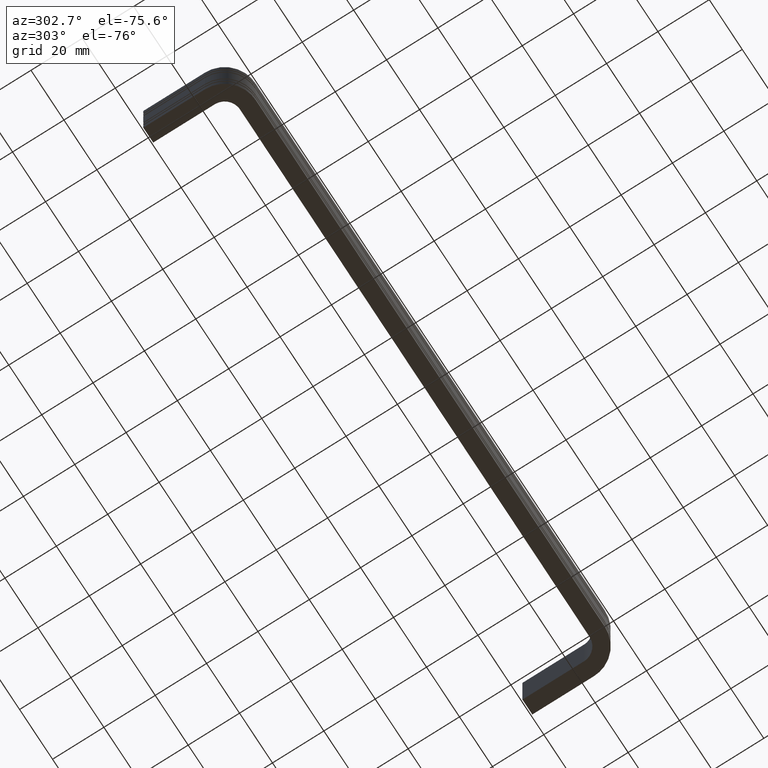
[diagram: clean part render]
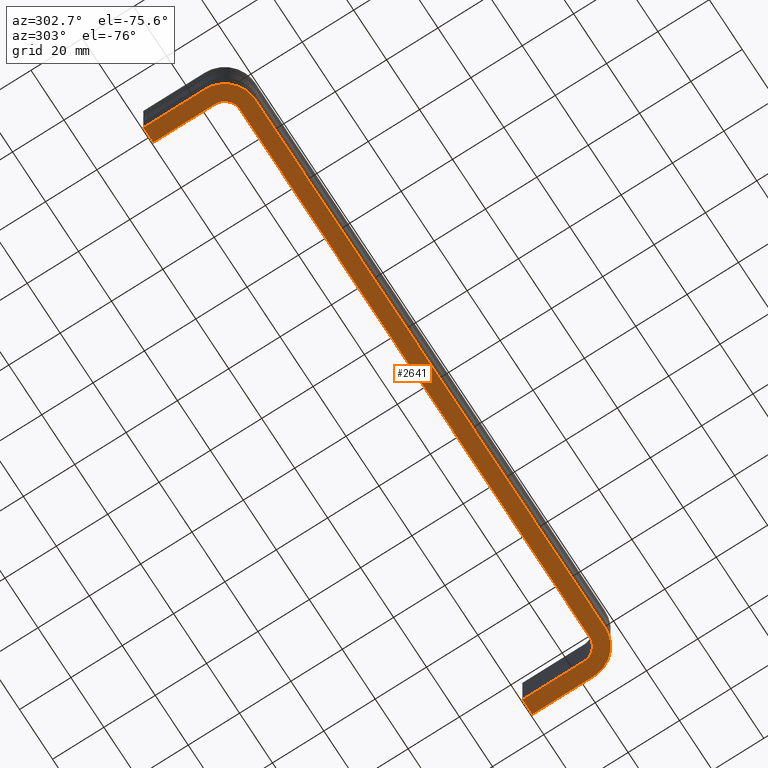
[diagram: same view with one face highlighted and labeled with its STEP entity id]
A machine part, auxiliary view. The second image highlights one B-rep face of the part: STEP entity #2641.
In plain terms, the highlighted face is a freeform B-spline surface patch.
Its self-contained STEP definition (entity closure, byte-faithful):
#734=CARTESIAN_POINT('',(232.999900000000000,-24.0,-11.0));
#735=VERTEX_POINT('',#734);
#741=CARTESIAN_POINT('',(232.999900000000000,0.0,-11.0));
#742=VERTEX_POINT('',#741);
#743=CARTESIAN_POINT('',(232.999900000000000,-24.0,-11.0));
#744=CARTESIAN_POINT('',(232.999900000000000,0.0,-11.0));
#745=QUASI_UNIFORM_CURVE('',1,(#743,#744),.UNSPECIFIED.,.F.,.U.);
#746=EDGE_CURVE('',#735,#742,#745,.T.);
#761=CARTESIAN_POINT('',(226.999900000000000,-24.0,-11.0));
#762=VERTEX_POINT('',#761);
#763=CARTESIAN_POINT('',(226.999900000000000,0.0,-11.0));
#764=VERTEX_POINT('',#763);
#765=CARTESIAN_POINT('',(226.999900000000000,-24.0,-11.0));
#766=CARTESIAN_POINT('',(226.999900000000000,0.0,-11.0));
#767=QUASI_UNIFORM_CURVE('',1,(#765,#766),.UNSPECIFIED.,.F.,.U.);
#768=EDGE_CURVE('',#762,#764,#767,.T.);
#1245=CARTESIAN_POINT('',(220.999900000000000,-36.0,-11.0));
#1246=VERTEX_POINT('',#1245);
#1252=CARTESIAN_POINT('',(220.999900000000000,-36.000000000000007,-11.0));
#1253=CARTESIAN_POINT('',(232.999900000000050,-36.000000000000014,-11.0));
#1254=CARTESIAN_POINT('',(232.999900000000000,-24.0,-11.0));
#1262=(BOUNDED_CURVE()B_SPLINE_CURVE(2,(#1252,#1253,#1254),.UNSPECIFIED.,.F.,.U.)CURVE()GEOMETRIC_REPRESENTATION_ITEM()QUASI_UNIFORM_CURVE()RATIONAL_B_SPLINE_CURVE((1.0,0.707106781186548,1.0))REPRESENTATION_ITEM(''));
#1263=EDGE_CURVE('',#1246,#735,#1262,.T.);
#1283=CARTESIAN_POINT('',(220.999900000000000,-30.0,-11.0));
#1284=VERTEX_POINT('',#1283);
#1285=CARTESIAN_POINT('',(220.999900000000000,-30.0,-11.0));
#1286=CARTESIAN_POINT('',(226.999900000000030,-30.000000000000004,-11.0));
#1287=CARTESIAN_POINT('',(226.999900000000000,-24.0,-11.0));
#1295=(BOUNDED_CURVE()B_SPLINE_CURVE(2,(#1285,#1286,#1287),.UNSPECIFIED.,.F.,.U.)CURVE()GEOMETRIC_REPRESENTATION_ITEM()QUASI_UNIFORM_CURVE()RATIONAL_B_SPLINE_CURVE((1.0,0.707106781186548,1.0))REPRESENTATION_ITEM(''));
#1296=EDGE_CURVE('',#1284,#762,#1295,.T.);
#1558=CARTESIAN_POINT('',(9.0,-36.0,-11.0));
#1559=VERTEX_POINT('',#1558);
#1565=CARTESIAN_POINT('',(9.0,-36.0,-11.0));
#1566=CARTESIAN_POINT('',(220.999900000000000,-36.0,-11.0));
#1567=QUASI_UNIFORM_CURVE('',1,(#1565,#1566),.UNSPECIFIED.,.F.,.U.);
#1568=EDGE_CURVE('',#1559,#1246,#1567,.T.);
#1579=CARTESIAN_POINT('',(9.0,-30.0,-11.0));
#1580=VERTEX_POINT('',#1579);
#1581=CARTESIAN_POINT('',(9.0,-30.0,-11.0));
#1582=CARTESIAN_POINT('',(220.999900000000000,-30.0,-11.0));
#1583=QUASI_UNIFORM_CURVE('',1,(#1581,#1582),.UNSPECIFIED.,.F.,.U.);
#1584=EDGE_CURVE('',#1580,#1284,#1583,.T.);
#2055=CARTESIAN_POINT('',(-3.0,-24.0,-11.0));
#2056=VERTEX_POINT('',#2055);
#2062=CARTESIAN_POINT('',(-3.000000000000001,-24.0,-11.0));
#2063=CARTESIAN_POINT('',(-3.0,-36.000000000000014,-11.0));
#2064=CARTESIAN_POINT('',(9.0,-36.000000000000007,-11.0));
#2072=(BOUNDED_CURVE()B_SPLINE_CURVE(2,(#2062,#2063,#2064),.UNSPECIFIED.,.F.,.U.)CURVE()GEOMETRIC_REPRESENTATION_ITEM()QUASI_UNIFORM_CURVE()RATIONAL_B_SPLINE_CURVE((1.0,0.707106781186548,1.0))REPRESENTATION_ITEM(''));
#2073=EDGE_CURVE('',#2056,#1559,#2072,.T.);
#2093=CARTESIAN_POINT('',(3.0,-24.0,-11.0));
#2094=VERTEX_POINT('',#2093);
#2095=CARTESIAN_POINT('',(2.999999999999999,-24.0,-11.0));
#2096=CARTESIAN_POINT('',(2.999999999999999,-30.000000000000004,-11.0));
#2097=CARTESIAN_POINT('',(9.0,-30.0,-11.0));
#2105=(BOUNDED_CURVE()B_SPLINE_CURVE(2,(#2095,#2096,#2097),.UNSPECIFIED.,.F.,.U.)CURVE()GEOMETRIC_REPRESENTATION_ITEM()QUASI_UNIFORM_CURVE()RATIONAL_B_SPLINE_CURVE((1.0,0.707106781186548,1.0))REPRESENTATION_ITEM(''));
#2106=EDGE_CURVE('',#2094,#1580,#2105,.T.);
#2592=CARTESIAN_POINT('',(-3.0,0.0,-11.0));
#2593=VERTEX_POINT('',#2592);
#2599=CARTESIAN_POINT('',(-3.0,0.0,-11.0));
#2600=CARTESIAN_POINT('',(-3.0,-24.0,-11.0));
#2601=QUASI_UNIFORM_CURVE('',1,(#2599,#2600),.UNSPECIFIED.,.F.,.U.);
#2602=EDGE_CURVE('',#2593,#2056,#2601,.T.);
#2608=CARTESIAN_POINT('',(-14.788193704429000,-37.798199930225017,-11.0));
#2609=CARTESIAN_POINT('',(244.788083154411400,-37.798199930225017,-11.0));
#2610=CARTESIAN_POINT('',(-14.788193704429000,1.798200895820261,-11.0));
#2611=CARTESIAN_POINT('',(244.788083154411400,1.798200895820261,-11.0));
#2612=B_SPLINE_SURFACE_WITH_KNOTS('',1,1,((#2608,#2610),(#2609,#2611)),.UNSPECIFIED.,.F.,.F.,.U.,(2,2),(2,2),(0.0,259.576276858840290),(0.0,39.596400826045283),.UNSPECIFIED.);
#2613=ORIENTED_EDGE('',*,*,#2602,.F.);
#2614=CARTESIAN_POINT('',(3.0,0.0,-11.0));
#2615=VERTEX_POINT('',#2614);
#2616=CARTESIAN_POINT('',(3.0,0.0,-11.0));
#2617=CARTESIAN_POINT('',(-3.0,0.0,-11.0));
#2618=QUASI_UNIFORM_CURVE('',1,(#2616,#2617),.UNSPECIFIED.,.F.,.U.);
#2619=EDGE_CURVE('',#2615,#2593,#2618,.T.);
#2620=ORIENTED_EDGE('',*,*,#2619,.F.);
#2621=CARTESIAN_POINT('',(3.0,0.0,-11.0));
#2622=CARTESIAN_POINT('',(3.0,-24.0,-11.0));
#2623=QUASI_UNIFORM_CURVE('',1,(#2621,#2622),.UNSPECIFIED.,.F.,.U.);
#2624=EDGE_CURVE('',#2615,#2094,#2623,.T.);
#2625=ORIENTED_EDGE('',*,*,#2624,.T.);
#2626=ORIENTED_EDGE('',*,*,#2106,.T.);
#2627=ORIENTED_EDGE('',*,*,#1584,.T.);
#2628=ORIENTED_EDGE('',*,*,#1296,.T.);
#2629=ORIENTED_EDGE('',*,*,#768,.T.);
#2630=CARTESIAN_POINT('',(226.999900000000000,0.0,-11.0));
#2631=CARTESIAN_POINT('',(232.999900000000000,0.0,-11.0));
#2632=QUASI_UNIFORM_CURVE('',1,(#2630,#2631),.UNSPECIFIED.,.F.,.U.);
#2633=EDGE_CURVE('',#764,#742,#2632,.T.);
#2634=ORIENTED_EDGE('',*,*,#2633,.T.);
#2635=ORIENTED_EDGE('',*,*,#746,.F.);
#2636=ORIENTED_EDGE('',*,*,#1263,.F.);
#2637=ORIENTED_EDGE('',*,*,#1568,.F.);
#2638=ORIENTED_EDGE('',*,*,#2073,.F.);
#2639=EDGE_LOOP('',(#2613,#2620,#2625,#2626,#2627,#2628,#2629,#2634,#2635,#2636,#2637,#2638));
#2640=FACE_OUTER_BOUND('',#2639,.T.);
#2641=ADVANCED_FACE('',(#2640),#2612,.F.);